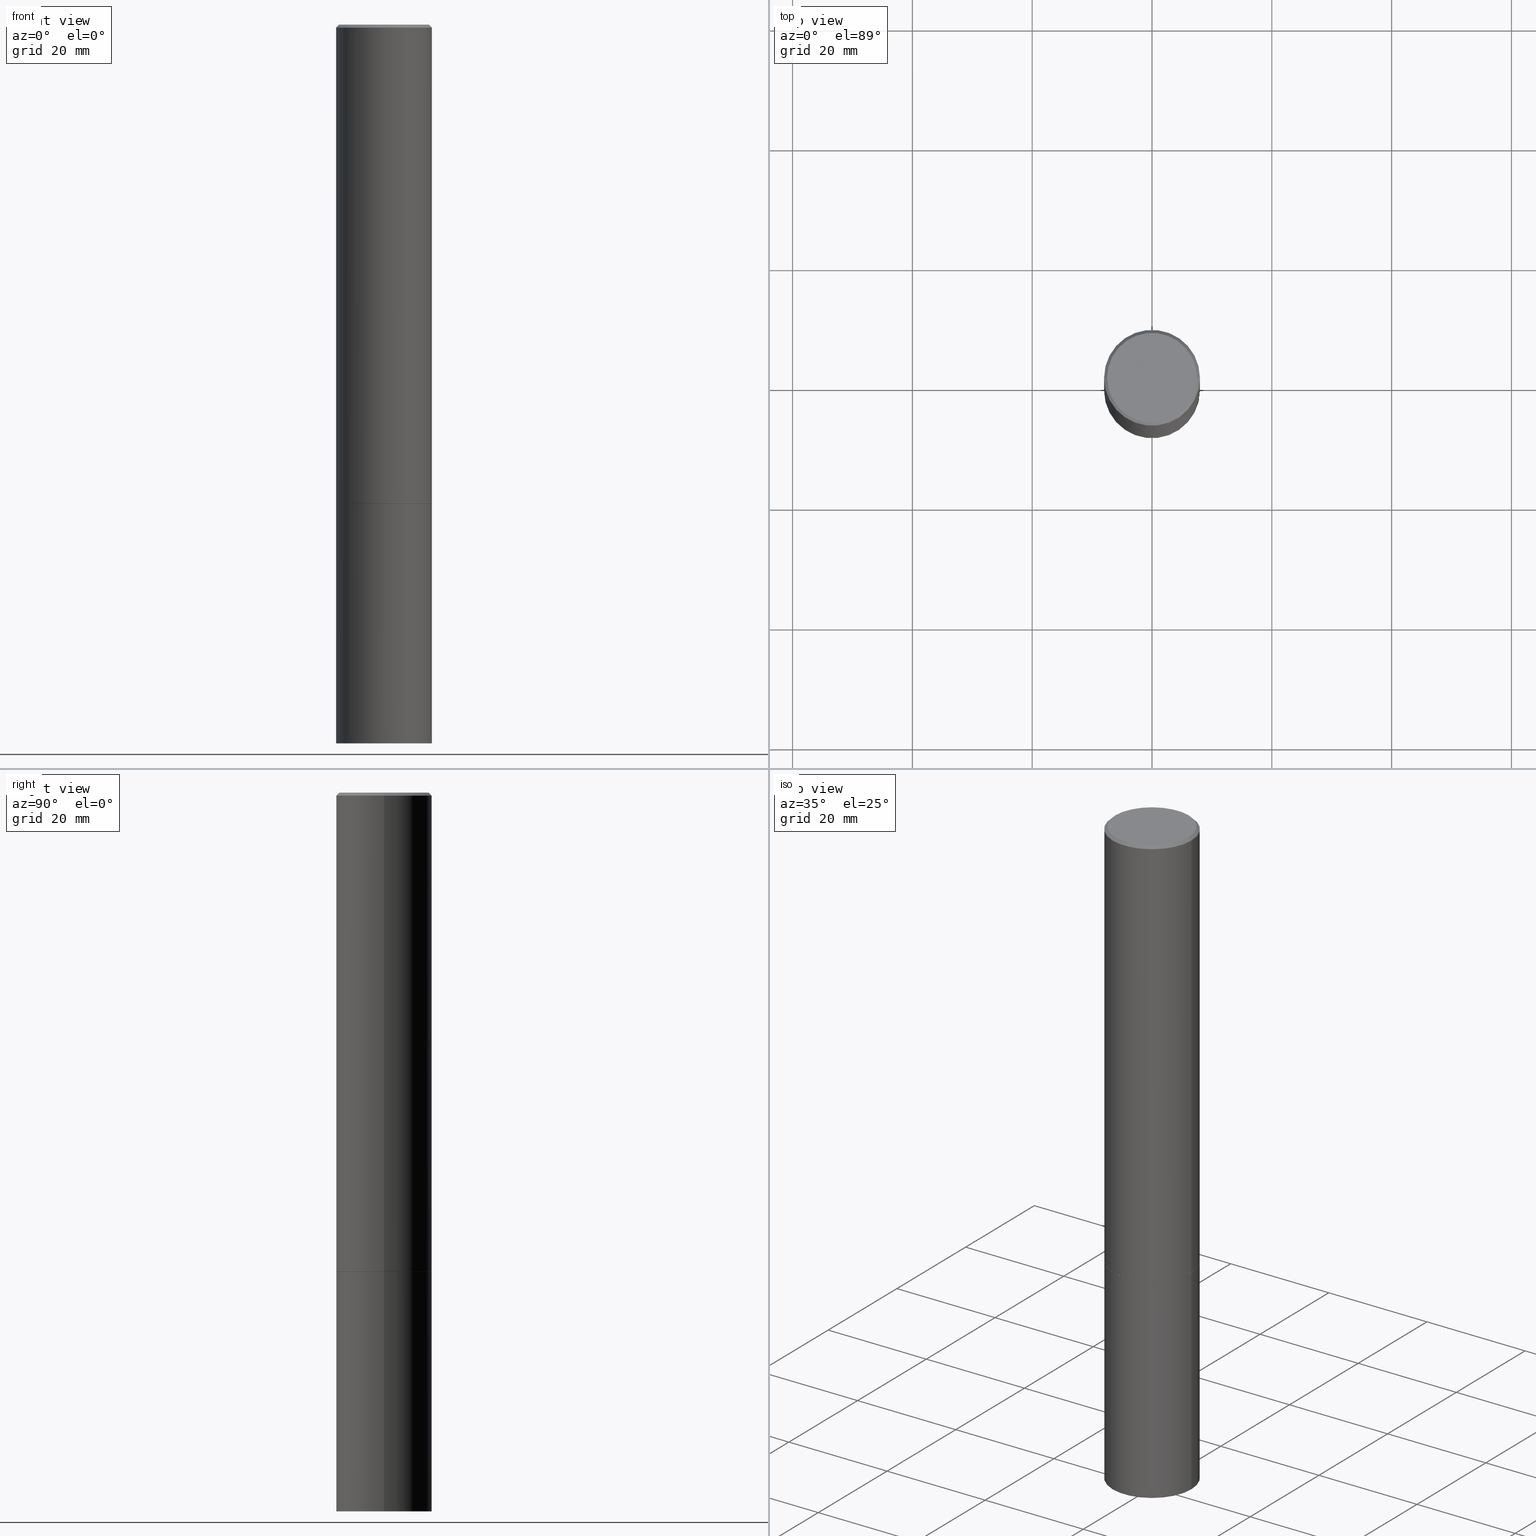
[diagram: canonical four-view strip — front | top / right | iso, engineering-drawing reading convention]
A machine part, canonical four-view strip (front | top / right | iso — engineering-drawing reading convention). The complete STEP part file that produces these views, byte-faithful:
ISO-10303-21;
HEADER;
FILE_DESCRIPTION (( 'STEP AP203' ),
    '1' );
FILE_NAME ('43957.STEP',
    '2024-02-28T06:00:45',
    ( '' ),
    ( '' ),
    'SwSTEP 2.0',
    'SolidWorks 2023',
    '' );
FILE_SCHEMA (( 'CONFIG_CONTROL_DESIGN' ));
ENDSEC;

DATA;
#1 = ORIENTED_EDGE ( 'NONE', *, *, #155, .T. ) ;
#2 = COORDINATED_UNIVERSAL_TIME_OFFSET ( 5, 0, .BEHIND. ) ;
#3 = LINE ( 'NONE', #166, #310 ) ;
#4 = DIRECTION ( 'NONE',  ( 1.000000000000000000, -6.982962677686263555E-15, 0.000000000000000000 ) ) ;
#5 = PRODUCT_RELATED_PRODUCT_CATEGORY ( 'detail', '', ( #163 ) ) ;
#6 = CC_DESIGN_APPROVAL ( #194, ( #365 ) ) ;
#7 = DIRECTION ( 'NONE',  ( -2.445468806185136597E-29, 3.491481338843145583E-15, 1.000000000000000000 ) ) ;
#8 = CARTESIAN_POINT ( 'NONE',  ( 0.3149500000000000077, -2.199284095337289871E-15, 1.535751875536930130E-29 ) ) ;
#9 = APPROVAL ( #189, 'UNSPECIFIED' ) ;
#10 = DIRECTION ( 'NONE',  ( -2.445468806185136597E-29, 3.491481338843145583E-15, 1.000000000000000000 ) ) ;
#11 = CLOSED_SHELL ( 'NONE', ( #115, #176, #329, #258, #33, #343, #17, #307 ) ) ;
#12 = DIMENSIONAL_EXPONENTS ( 1.000000000000000000, 0.000000000000000000, 0.000000000000000000, 0.000000000000000000, 0.000000000000000000, 0.000000000000000000, 0.000000000000000000 ) ;
#13 = ORIENTED_EDGE ( 'NONE', *, *, #243, .T. ) ;
#14 = ORIENTED_EDGE ( 'NONE', *, *, #363, .T. ) ;
#15 = ORIENTED_EDGE ( 'NONE', *, *, #266, .F. ) ;
#16 = ORIENTED_EDGE ( 'NONE', *, *, #20, .T. ) ;
#17 = ADVANCED_FACE ( 'NONE', ( #40 ), #355, .F. ) ;
#18 = ORIENTED_EDGE ( 'NONE', *, *, #277, .T. ) ;
#19 = DIRECTION ( 'NONE',  ( -0.7071067811865466846, 2.468850131082247989E-15, -0.7071067811865483499 ) ) ;
#20 = EDGE_CURVE ( 'NONE', #244, #212, #348, .T. ) ;
#21 = DIRECTION ( 'NONE',  ( -2.445468806185136597E-29, 3.491481338843145583E-15, 1.000000000000000000 ) ) ;
#22 = DATE_AND_TIME ( #361, #45 ) ;
#23 = DIRECTION ( 'NONE',  ( 1.000000000000000000, -6.982962677686263555E-15, 0.000000000000000000 ) ) ;
#24 = CIRCLE ( 'NONE', #123, 0.3139500000000000068 ) ;
#25 = APPROVAL_PERSON_ORGANIZATION ( #280, #9, #309 ) ;
#26 = PERSON_AND_ORGANIZATION_ROLE ( 'creator' ) ;
#27 = EDGE_LOOP ( 'NONE', ( #295, #15 ) ) ;
#28 = DIRECTION ( 'NONE',  ( 0.7071067811865466846, -7.319954787623252890E-15, -0.7071067811865483499 ) ) ;
#29 = EDGE_CURVE ( 'NONE', #103, #108, #186, .T. ) ;
#30 = DIRECTION ( 'NONE',  ( -2.445468806185136597E-29, 3.491481338843145583E-15, 1.000000000000000000 ) ) ;
#31 = CONICAL_SURFACE ( 'NONE', #184, 0.3149499999999996191, 0.7853981633974471688 ) ;
#32 = DIRECTION ( 'NONE',  ( 2.438088387897960049E-29, -3.491481338843145188E-15, -1.000000000000000000 ) ) ;
#33 = ADVANCED_FACE ( 'NONE', ( #145 ), #332, .T. ) ;
#34 = DIRECTION ( 'NONE',  ( 2.438088387897960049E-29, -3.491481338843145188E-15, -1.000000000000000000 ) ) ;
#35 = CARTESIAN_POINT ( 'NONE',  ( 7.702248551960704469E-29, -1.099676962482037073E-14, -3.149599999999999511 ) ) ;
#36 = APPROVAL_DATE_TIME ( #205, #194 ) ;
#37 = CIRCLE ( 'NONE', #67, 0.2949499999999996014 ) ;
#38 = LINE ( 'NONE', #350, #39 ) ;
#39 = VECTOR ( 'NONE', #202, 39.37007874015748143 ) ;
#40 = FACE_OUTER_BOUND ( 'NONE', #50, .T. ) ;
#41 = ADVANCED_FACE ( 'NONE', ( #114 ), #86, .F. ) ;
#42 =( NAMED_UNIT ( * ) SI_UNIT ( $, .STERADIAN. ) SOLID_ANGLE_UNIT ( ) );
#43 = ORIENTED_EDGE ( 'NONE', *, *, #155, .F. ) ;
#44 = ORIENTED_EDGE ( 'NONE', *, *, #200, .T. ) ;
#45 = LOCAL_TIME ( 1, 0, 45.00000000000000000, #335 ) ;
#46 = AXIS2_PLACEMENT_3D ( 'NONE', #154, #352, #283 ) ;
#47 = CARTESIAN_POINT ( 'NONE',  ( 0.000000000000000000, 0.000000000000000000, 0.000000000000000000 ) ) ;
#48 = APPROVAL ( #76, 'UNSPECIFIED' ) ;
#49 = ORIENTED_EDGE ( 'NONE', *, *, #96, .F. ) ;
#50 = EDGE_LOOP ( 'NONE', ( #43, #321 ) ) ;
#51 = APPROVAL_DATE_TIME ( #83, #48 ) ;
#52 = DESIGN_CONTEXT ( 'detailed design', #81, 'design' ) ;
#53 = PERSON_AND_ORGANIZATION_ROLE ( 'classification_officer' ) ;
#54 = CARTESIAN_POINT ( 'NONE',  ( -0.3149499999999996191, 2.129454468560423812E-15, -0.02000000000000006981 ) ) ;
#55 = DIRECTION ( 'NONE',  ( -2.445468806185136597E-29, 3.491481338843145583E-15, 1.000000000000000000 ) ) ;
#56 = DIRECTION ( 'NONE',  ( 1.000000000000000000, -6.982962677686265922E-15, 0.000000000000000000 ) ) ;
#57 = CLOSED_SHELL ( 'NONE', ( #236, #248, #41, #218 ) ) ;
#58 = AXIS2_PLACEMENT_3D ( 'NONE', #249, #141, #302 ) ;
#59 = PERSON_AND_ORGANIZATION ( #305, #333 ) ;
#60 = AXIS2_PLACEMENT_3D ( 'NONE', #170, #216, #4 ) ;
#61 = DIRECTION ( 'NONE',  ( 1.000000000000000000, -6.982962677686266711E-15, 0.000000000000000000 ) ) ;
#62 = CC_DESIGN_PERSON_AND_ORGANIZATION_ASSIGNMENT ( #219, #275, ( #80 ) ) ;
#63 = DIRECTION ( 'NONE',  ( 2.445468806185136597E-29, -3.491481338843145583E-15, -1.000000000000000000 ) ) ;
#64 = CARTESIAN_POINT ( 'NONE',  ( 2.199284095337404650E-15, 0.3149499999999834654, -4.724400000000001043 ) ) ;
#65 = UNCERTAINTY_MEASURE_WITH_UNIT (LENGTH_MEASURE( 1.000000000000000082E-05 ), #323, 'distance_accuracy_value', 'NONE');
#66 = EDGE_CURVE ( 'NONE', #238, #271, #183, .T. ) ;
#67 = AXIS2_PLACEMENT_3D ( 'NONE', #336, #196, #89 ) ;
#68 = DIRECTION ( 'NONE',  ( -0.7071067811866199593, 7.493145998870616062E-15, 0.7071067811864750752 ) ) ;
#69 = LINE ( 'NONE', #8, #127 ) ;
#70 = SHAPE_DEFINITION_REPRESENTATION ( #133, #92 ) ;
#71 = LINE ( 'NONE', #148, #303 ) ;
#72 = EDGE_CURVE ( 'NONE', #108, #238, #3, .T. ) ;
#73 = EDGE_LOOP ( 'NONE', ( #78, #132, #188, #135 ) ) ;
#74 = DIRECTION ( 'NONE',  ( 1.000000000000000000, 0.000000000000000000, 0.000000000000000000 ) ) ;
#75 = EDGE_LOOP ( 'NONE', ( #299, #18, #105, #284 ) ) ;
#76 = APPROVAL_STATUS ( 'not_yet_approved' ) ;
#77 = ORIENTED_EDGE ( 'NONE', *, *, #296, .T. ) ;
#78 = ORIENTED_EDGE ( 'NONE', *, *, #200, .F. ) ;
#79 = CIRCLE ( 'NONE', #98, 0.3149500000000000077 ) ;
#80 = PRODUCT_DEFINITION_FORMATION_WITH_SPECIFIED_SOURCE ( 'ANY', '', #163, .NOT_KNOWN. ) ;
#81 = APPLICATION_CONTEXT ( 'configuration controlled 3d designs of mechanical parts and assemblies' ) ;
#82 = ORIENTED_EDGE ( 'NONE', *, *, #172, .F. ) ;
#83 = DATE_AND_TIME ( #331, #220 ) ;
#84 = CARTESIAN_POINT ( 'NONE',  ( 0.3149499999999997857, -2.199284095337288293E-15, 1.535751875536929009E-29 ) ) ;
#85 = CALENDAR_DATE ( 2024, 28, 2 ) ;
#86 = PLANE ( 'NONE',  #345 ) ;
#87 = CONICAL_SURFACE ( 'NONE', #147, 0.3149499999999996191, 0.7853981633974471688 ) ;
#88 = CARTESIAN_POINT ( 'NONE',  ( -0.3149500000000000077, -1.150810768474902901E-14, -4.724400000000000155 ) ) ;
#89 = DIRECTION ( 'NONE',  ( 1.000000000000000000, -6.982962677686265922E-15, 4.876053491004741073E-29 ) ) ;
#90 = EDGE_CURVE ( 'NONE', #129, #300, #353, .T. ) ;
#91 = DATE_AND_TIME ( #85, #293 ) ;
#92 = ADVANCED_BREP_SHAPE_REPRESENTATION ( '43957', ( #360, #239, #174 ), #320 ) ;
#93 = DIRECTION ( 'NONE',  ( -1.000000000000000000, 6.982962677686265922E-15, -4.876176775795935793E-29 ) ) ;
#94 = VECTOR ( 'NONE', #19, 39.37007874015748143 ) ;
#95 = FACE_OUTER_BOUND ( 'NONE', #182, .T. ) ;
#96 = EDGE_CURVE ( 'NONE', #271, #238, #198, .T. ) ;
#97 = CYLINDRICAL_SURFACE ( 'NONE', #240, 0.3149500000000000077 ) ;
#98 = AXIS2_PLACEMENT_3D ( 'NONE', #197, #110, #165 ) ;
#99 = DIRECTION ( 'NONE',  ( -1.000000000000000000, 6.982962677686265922E-15, 0.000000000000000000 ) ) ;
#100 = DIRECTION ( 'NONE',  ( -1.000000000000000000, 6.982962677686265922E-15, -4.876176775795935793E-29 ) ) ;
#101 = CC_DESIGN_PERSON_AND_ORGANIZATION_ASSIGNMENT ( #358, #26, ( #317 ) ) ;
#102 = EDGE_LOOP ( 'NONE', ( #225, #44 ) ) ;
#103 = VERTEX_POINT ( 'NONE', #366 ) ;
#104 = ORIENTED_EDGE ( 'NONE', *, *, #266, .T. ) ;
#105 = ORIENTED_EDGE ( 'NONE', *, *, #66, .F. ) ;
#106 = CIRCLE ( 'NONE', #282, 0.3149500000000000077 ) ;
#107 = COORDINATED_UNIVERSAL_TIME_OFFSET ( 5, 0, .BEHIND. ) ;
#108 = VERTEX_POINT ( 'NONE', #168 ) ;
#109 = EDGE_CURVE ( 'NONE', #300, #238, #255, .T. ) ;
#110 = DIRECTION ( 'NONE',  ( -2.445468806185136597E-29, 3.491481338843145583E-15, 1.000000000000000000 ) ) ;
#111 = CARTESIAN_POINT ( 'NONE',  ( 0.000000000000000000, 0.000000000000000000, 0.000000000000000000 ) ) ;
#112 = CC_DESIGN_APPROVAL ( #48, ( #317 ) ) ;
#113 = APPROVAL_ROLE ( '' ) ;
#114 = FACE_OUTER_BOUND ( 'NONE', #273, .T. ) ;
#115 = ADVANCED_FACE ( 'NONE', ( #167 ), #298, .T. ) ;
#116 = APPROVAL_DATE_TIME ( #337, #9 ) ;
#117 = DIRECTION ( 'NONE',  ( 1.000000000000000000, -6.982962677686269866E-15, 0.000000000000000000 ) ) ;
#118 = LINE ( 'NONE', #287, #347 ) ;
#119 = PLANE ( 'NONE',  #257 ) ;
#120 = CARTESIAN_POINT ( 'NONE',  ( 2.059624841783561302E-15, 0.2949499999999996014, -1.025543908401683972E-15 ) ) ;
#121 = CC_DESIGN_DATE_AND_TIME_ASSIGNMENT ( #22, #301, ( #365 ) ) ;
#122 = DIRECTION ( 'NONE',  ( 1.000000000000000000, -6.982962677686266711E-15, 4.876176775795936353E-29 ) ) ;
#123 = AXIS2_PLACEMENT_3D ( 'NONE', #276, #281, #61 ) ;
#124 = CARTESIAN_POINT ( 'NONE',  ( 0.3149499999999996191, -2.230543471175004294E-15, -0.02000000000000006981 ) ) ;
#125 = PERSON_AND_ORGANIZATION_ROLE ( 'design_owner' ) ;
#126 = ORIENTED_EDGE ( 'NONE', *, *, #227, .F. ) ;
#127 = VECTOR ( 'NONE', #341, 39.37007874015748143 ) ;
#128 = CC_DESIGN_SECURITY_CLASSIFICATION ( #365, ( #80 ) ) ;
#129 = VERTEX_POINT ( 'NONE', #247 ) ;
#130 =( LENGTH_UNIT ( ) NAMED_UNIT ( * ) SI_UNIT ( $, .METRE. ) );
#131 = ORIENTED_EDGE ( 'NONE', *, *, #72, .F. ) ;
#132 = ORIENTED_EDGE ( 'NONE', *, *, #72, .T. ) ;
#133 = PRODUCT_DEFINITION_SHAPE ( 'NONE', 'NONE',  #317 ) ;
#134 = CIRCLE ( 'NONE', #340, 0.3139500000000000068 ) ;
#135 = ORIENTED_EDGE ( 'NONE', *, *, #162, .F. ) ;
#136 = PERSON_AND_ORGANIZATION ( #305, #333 ) ;
#137 = DIRECTION ( 'NONE',  ( -2.445468806185136597E-29, 3.491481338843145583E-15, 1.000000000000000000 ) ) ;
#138 = APPROVAL_STATUS ( 'not_yet_approved' ) ;
#139 = FACE_OUTER_BOUND ( 'NONE', #75, .T. ) ;
#140 = SECURITY_CLASSIFICATION_LEVEL ( 'unclassified' ) ;
#141 = DIRECTION ( 'NONE',  ( -2.445468806185136597E-29, 3.491481338843145583E-15, 1.000000000000000000 ) ) ;
#142 = CC_DESIGN_PERSON_AND_ORGANIZATION_ASSIGNMENT ( #191, #53, ( #365 ) ) ;
#143 = DIRECTION ( 'NONE',  ( 1.000000000000000000, -6.982962677686265922E-15, 4.876053491004741073E-29 ) ) ;
#144 = EDGE_LOOP ( 'NONE', ( #16, #159, #319, #157 ) ) ;
#145 = FACE_OUTER_BOUND ( 'NONE', #241, .T. ) ;
#146 = CARTESIAN_POINT ( 'NONE',  ( 0.3149500000000000077, -1.319605372015765902E-14, -3.149599999999999511 ) ) ;
#147 = AXIS2_PLACEMENT_3D ( 'NONE', #344, #315, #99 ) ;
#148 = CARTESIAN_POINT ( 'NONE',  ( 0.3139500000000000068, -1.318907075747997459E-14, -3.149599999999999511 ) ) ;
#149 = CARTESIAN_POINT ( 'NONE',  ( 1.155337282794105951E-28, -1.649515443723055925E-14, -4.724400000000000155 ) ) ;
#150 = EDGE_CURVE ( 'NONE', #300, #129, #79, .T. ) ;
#151 = PLANE ( 'NONE',  #169 ) ;
#152 = AXIS2_PLACEMENT_3D ( 'NONE', #226, #252, #143 ) ;
#153 = APPLICATION_PROTOCOL_DEFINITION ( 'international standard', 'config_control_design', 1994, #224 ) ;
#154 = CARTESIAN_POINT ( 'NONE',  ( 7.702248551960704469E-29, -1.099676962482037073E-14, -3.149599999999999511 ) ) ;
#155 = EDGE_CURVE ( 'NONE', #242, #161, #24, .T. ) ;
#156 = APPROVAL_ROLE ( '' ) ;
#157 = ORIENTED_EDGE ( 'NONE', *, *, #243, .F. ) ;
#158 = AXIS2_PLACEMENT_3D ( 'NONE', #111, #338, #221 ) ;
#159 = ORIENTED_EDGE ( 'NONE', *, *, #254, .T. ) ;
#160 = ORIENTED_EDGE ( 'NONE', *, *, #322, .T. ) ;
#161 = VERTEX_POINT ( 'NONE', #359 ) ;
#162 = EDGE_CURVE ( 'NONE', #103, #271, #304, .T. ) ;
#163 = PRODUCT ( '43957', '43957', '', ( #208 ) ) ;
#164 = CIRCLE ( 'NONE', #233, 0.3149500000000000077 ) ;
#165 = DIRECTION ( 'NONE',  ( 1.000000000000000000, -6.982962677686269866E-15, 0.000000000000000000 ) ) ;
#166 = CARTESIAN_POINT ( 'NONE',  ( 0.3149499999999996191, -2.230543471175004294E-15, -0.02000000000000006981 ) ) ;
#167 = FACE_OUTER_BOUND ( 'NONE', #213, .T. ) ;
#168 = CARTESIAN_POINT ( 'NONE',  ( 0.2949499999999996014, -2.127023677808857314E-15, 8.537024980215462707E-18 ) ) ;
#169 = AXIS2_PLACEMENT_3D ( 'NONE', #120, #32, #100 ) ;
#170 = CARTESIAN_POINT ( 'NONE',  ( 1.155337282794105951E-28, -1.649515443723055925E-14, -4.724400000000000155 ) ) ;
#171 = DIRECTION ( 'NONE',  ( -1.000000000000000000, 6.982962677686265922E-15, 0.000000000000000000 ) ) ;
#172 = EDGE_CURVE ( 'NONE', #211, #269, #164, .T. ) ;
#173 = CARTESIAN_POINT ( 'NONE',  ( 0.3149500000000000077, -1.319256223881881917E-14, -3.148600000000000065 ) ) ;
#174 = AXIS2_PLACEMENT_3D ( 'NONE', #47, #272, #74 ) ;
#175 = FACE_OUTER_BOUND ( 'NONE', #180, .T. ) ;
#176 = ADVANCED_FACE ( 'NONE', ( #139 ), #362, .T. ) ;
#177 = DIRECTION ( 'NONE',  ( -2.445468806185136597E-29, 3.491481338843145583E-15, 1.000000000000000000 ) ) ;
#178 = CARTESIAN_POINT ( 'NONE',  ( 0.000000000000000000, 0.000000000000000000, 0.000000000000000000 ) ) ;
#179 = PERSON_AND_ORGANIZATION ( #305, #333 ) ;
#180 = EDGE_LOOP ( 'NONE', ( #126, #14, #160, #245 ) ) ;
#181 = EDGE_LOOP ( 'NONE', ( #356, #104, #13, #82 ) ) ;
#182 = EDGE_LOOP ( 'NONE', ( #131, #294, #267, #354 ) ) ;
#183 = CIRCLE ( 'NONE', #203, 0.3149499999999996191 ) ;
#184 = AXIS2_PLACEMENT_3D ( 'NONE', #232, #63, #171 ) ;
#185 = ORIENTED_EDGE ( 'NONE', *, *, #277, .F. ) ;
#186 = CIRCLE ( 'NONE', #152, 0.2949499999999996014 ) ;
#187 =( NAMED_UNIT ( * ) PLANE_ANGLE_UNIT ( ) SI_UNIT ( $, .RADIAN. ) );
#188 = ORIENTED_EDGE ( 'NONE', *, *, #66, .T. ) ;
#189 = APPROVAL_STATUS ( 'not_yet_approved' ) ;
#190 = DIRECTION ( 'NONE',  ( -2.445468806185136877E-29, 3.491481338843145188E-15, 1.000000000000000000 ) ) ;
#191 = PERSON_AND_ORGANIZATION ( #305, #333 ) ;
#192 = VECTOR ( 'NONE', #190, 39.37007874015748143 ) ;
#193 = DIRECTION ( 'NONE',  ( 1.000000000000000000, -6.982962677686266711E-15, 4.876176775795935793E-29 ) ) ;
#194 = APPROVAL ( #138, 'UNSPECIFIED' ) ;
#195 = CARTESIAN_POINT ( 'NONE',  ( 4.890937612370289799E-31, -6.982962677686315028E-17, -0.02000000000000006981 ) ) ;
#196 = DIRECTION ( 'NONE',  ( -2.445468806185136597E-29, 3.491481338843145583E-15, 1.000000000000000000 ) ) ;
#197 = CARTESIAN_POINT ( 'NONE',  ( 7.699803083154521108E-29, -1.099327814348152772E-14, -3.148600000000000065 ) ) ;
#198 = CIRCLE ( 'NONE', #214, 0.3149499999999996191 ) ;
#199 = FACE_OUTER_BOUND ( 'NONE', #144, .T. ) ;
#200 = EDGE_CURVE ( 'NONE', #108, #103, #37, .T. ) ;
#201 = LINE ( 'NONE', #228, #251 ) ;
#202 = DIRECTION ( 'NONE',  ( -2.445468806185136877E-29, 3.491481338843145188E-15, 1.000000000000000000 ) ) ;
#203 = AXIS2_PLACEMENT_3D ( 'NONE', #285, #253, #56 ) ;
#204 = APPROVAL_PERSON_ORGANIZATION ( #136, #194, #113 ) ;
#205 = DATE_AND_TIME ( #229, #264 ) ;
#206 = DIRECTION ( 'NONE',  ( 1.000000000000000000, -6.982962677686263555E-15, 0.000000000000000000 ) ) ;
#207 = CARTESIAN_POINT ( 'NONE',  ( 0.000000000000000000, 0.000000000000000000, 0.000000000000000000 ) ) ;
#208 = MECHANICAL_CONTEXT ( 'NONE', #224, 'mechanical' ) ;
#209 = AXIS2_PLACEMENT_3D ( 'NONE', #223, #137, #117 ) ;
#210 = CC_DESIGN_DATE_AND_TIME_ASSIGNMENT ( #91, #246, ( #317 ) ) ;
#211 = VERTEX_POINT ( 'NONE', #308 ) ;
#212 = VERTEX_POINT ( 'NONE', #88 ) ;
#213 = EDGE_LOOP ( 'NONE', ( #1, #297, #215, #274 ) ) ;
#214 = AXIS2_PLACEMENT_3D ( 'NONE', #195, #55, #311 ) ;
#215 = ORIENTED_EDGE ( 'NONE', *, *, #150, .F. ) ;
#216 = DIRECTION ( 'NONE',  ( -2.445468806185136597E-29, 3.491481338843145583E-15, 1.000000000000000000 ) ) ;
#217 = CARTESIAN_POINT ( 'NONE',  ( 2.199284095337366390E-15, 0.3149499999999890165, -3.149600000000000843 ) ) ;
#218 = ADVANCED_FACE ( 'NONE', ( #286 ), #265, .T. ) ;
#219 = PERSON_AND_ORGANIZATION ( #305, #333 ) ;
#220 = LOCAL_TIME ( 1, 0, 45.00000000000000000, #268 ) ;
#221 = DIRECTION ( 'NONE',  ( 1.000000000000000000, -6.982962677686266711E-15, 4.876176775795935793E-29 ) ) ;
#222 = COORDINATED_UNIVERSAL_TIME_OFFSET ( 5, 0, .BEHIND. ) ;
#223 = CARTESIAN_POINT ( 'NONE',  ( 7.699803083154521108E-29, -1.099327814348152772E-14, -3.148600000000000065 ) ) ;
#224 = APPLICATION_CONTEXT ( 'configuration controlled 3d designs of mechanical parts and assemblies' ) ;
#225 = ORIENTED_EDGE ( 'NONE', *, *, #29, .T. ) ;
#226 = CARTESIAN_POINT ( 'NONE',  ( -2.087702828670439639E-46, 2.980686340760894400E-32, 8.537024980200822558E-18 ) ) ;
#227 = EDGE_CURVE ( 'NONE', #161, #129, #201, .T. ) ;
#228 = CARTESIAN_POINT ( 'NONE',  ( -0.3139500000000000068, -8.766020705901534966E-15, -3.149599999999999511 ) ) ;
#229 = CALENDAR_DATE ( 2024, 28, 2 ) ;
#230 = DIRECTION ( 'NONE',  ( 1.000000000000000000, -6.982962677686263555E-15, 0.000000000000000000 ) ) ;
#231 = DIRECTION ( 'NONE',  ( 0.7071067811866199593, -2.468850131083015945E-15, 0.7071067811864750752 ) ) ;
#232 = CARTESIAN_POINT ( 'NONE',  ( 4.890937612370289799E-31, -6.982962677686315028E-17, -0.02000000000000006981 ) ) ;
#233 = AXIS2_PLACEMENT_3D ( 'NONE', #279, #21, #23 ) ;
#234 = CARTESIAN_POINT ( 'NONE',  ( 0.3149500000000000077, -1.869443853256784755E-14, -4.724400000000000155 ) ) ;
#235 = LENGTH_MEASURE_WITH_UNIT ( LENGTH_MEASURE( 0.02539999999999999897 ), #130 );
#236 = ADVANCED_FACE ( 'NONE', ( #199 ), #97, .T. ) ;
#237 = APPLICATION_PROTOCOL_DEFINITION ( 'international standard', 'config_control_design', 1994, #81 ) ;
#238 = VERTEX_POINT ( 'NONE', #124 ) ;
#239 = MANIFOLD_SOLID_BREP ( 'Body-Move/Copy2[2]', #11 ) ;
#240 = AXIS2_PLACEMENT_3D ( 'NONE', #207, #30, #313 ) ;
#241 = EDGE_LOOP ( 'NONE', ( #185, #324, #325, #49 ) ) ;
#242 = VERTEX_POINT ( 'NONE', #289 ) ;
#243 = EDGE_CURVE ( 'NONE', #244, #269, #69, .T. ) ;
#244 = VERTEX_POINT ( 'NONE', #234 ) ;
#245 = ORIENTED_EDGE ( 'NONE', *, *, #90, .F. ) ;
#246 = DATE_TIME_ROLE ( 'creation_date' ) ;
#247 = CARTESIAN_POINT ( 'NONE',  ( -0.3149500000000000077, -3.293699538852755977E-15, -3.148600000000000065 ) ) ;
#248 = ADVANCED_FACE ( 'NONE', ( #318 ), #119, .T. ) ;
#249 = CARTESIAN_POINT ( 'NONE',  ( 7.702248551960704469E-29, -1.099676962482037073E-14, -3.149599999999999511 ) ) ;
#250 = CALENDAR_DATE ( 2024, 28, 2 ) ;
#251 = VECTOR ( 'NONE', #68, 39.37007874015748143 ) ;
#252 = DIRECTION ( 'NONE',  ( -2.445468806185136597E-29, 3.491481338843145583E-15, 1.000000000000000000 ) ) ;
#253 = DIRECTION ( 'NONE',  ( -2.445468806185136597E-29, 3.491481338843145583E-15, 1.000000000000000000 ) ) ;
#254 = EDGE_CURVE ( 'NONE', #212, #211, #118, .T. ) ;
#255 = LINE ( 'NONE', #84, #192 ) ;
#256 = CARTESIAN_POINT ( 'NONE',  ( -0.3149499999999996191, 2.129454468560423812E-15, -0.02000000000000006981 ) ) ;
#257 = AXIS2_PLACEMENT_3D ( 'NONE', #64, #34, #259 ) ;
#258 = ADVANCED_FACE ( 'NONE', ( #95 ), #31, .T. ) ;
#259 = DIRECTION ( 'NONE',  ( -1.000000000000000000, 6.982962677686265922E-15, -4.876176775795935793E-29 ) ) ;
#260 = DIRECTION ( 'NONE',  ( -2.445468806185136597E-29, 3.491481338843145583E-15, 1.000000000000000000 ) ) ;
#261 = CARTESIAN_POINT ( 'NONE',  ( 7.702248551960704469E-29, -1.099676962482037073E-14, -3.149599999999999511 ) ) ;
#262 = AXIS2_PLACEMENT_3D ( 'NONE', #330, #306, #193 ) ;
#263 = AXIS2_PLACEMENT_3D ( 'NONE', #149, #291, #206 ) ;
#264 = LOCAL_TIME ( 1, 0, 45.00000000000000000, #222 ) ;
#265 = CYLINDRICAL_SURFACE ( 'NONE', #326, 0.3149500000000000077 ) ;
#266 = EDGE_CURVE ( 'NONE', #212, #244, #364, .T. ) ;
#267 = ORIENTED_EDGE ( 'NONE', *, *, #162, .T. ) ;
#268 = COORDINATED_UNIVERSAL_TIME_OFFSET ( 5, 0, .BEHIND. ) ;
#269 = VERTEX_POINT ( 'NONE', #146 ) ;
#270 = APPROVAL_PERSON_ORGANIZATION ( #351, #48, #156 ) ;
#271 = VERTEX_POINT ( 'NONE', #256 ) ;
#272 = DIRECTION ( 'NONE',  ( 0.000000000000000000, 0.000000000000000000, 1.000000000000000000 ) ) ;
#273 = EDGE_LOOP ( 'NONE', ( #77, #328 ) ) ;
#274 = ORIENTED_EDGE ( 'NONE', *, *, #322, .F. ) ;
#275 = PERSON_AND_ORGANIZATION_ROLE ( 'design_supplier' ) ;
#276 = CARTESIAN_POINT ( 'NONE',  ( 7.702248551960704469E-29, -1.099676962482037073E-14, -3.149599999999999511 ) ) ;
#277 = EDGE_CURVE ( 'NONE', #129, #271, #38, .T. ) ;
#278 = PERSON_AND_ORGANIZATION_ROLE ( 'creator' ) ;
#279 = CARTESIAN_POINT ( 'NONE',  ( 7.702248551960704469E-29, -1.099676962482037073E-14, -3.149599999999999511 ) ) ;
#280 = PERSON_AND_ORGANIZATION ( #305, #333 ) ;
#281 = DIRECTION ( 'NONE',  ( -2.445468806185136597E-29, 3.491481338843145583E-15, 1.000000000000000000 ) ) ;
#282 = AXIS2_PLACEMENT_3D ( 'NONE', #35, #7, #230 ) ;
#283 = DIRECTION ( 'NONE',  ( 1.000000000000000000, -6.982962677686265922E-15, 4.876176775795935793E-29 ) ) ;
#284 = ORIENTED_EDGE ( 'NONE', *, *, #109, .F. ) ;
#285 = CARTESIAN_POINT ( 'NONE',  ( 4.890937612370289799E-31, -6.982962677686315028E-17, -0.02000000000000006981 ) ) ;
#286 = FACE_OUTER_BOUND ( 'NONE', #181, .T. ) ;
#287 = CARTESIAN_POINT ( 'NONE',  ( -0.3149500000000000077, 2.237854346276435590E-15, -1.549218606675782676E-29 ) ) ;
#288 = CONICAL_SURFACE ( 'NONE', #292, 0.3139500000000000068, 0.7853981633975507526 ) ;
#289 = CARTESIAN_POINT ( 'NONE',  ( 0.3139500000000000068, -1.318907075747997459E-14, -3.149599999999999511 ) ) ;
#290 = DIRECTION ( 'NONE',  ( 1.000000000000000000, -6.982962677686266711E-15, 0.000000000000000000 ) ) ;
#291 = DIRECTION ( 'NONE',  ( -2.445468806185136597E-29, 3.491481338843145583E-15, 1.000000000000000000 ) ) ;
#292 = AXIS2_PLACEMENT_3D ( 'NONE', #316, #177, #290 ) ;
#293 = LOCAL_TIME ( 1, 0, 45.00000000000000000, #2 ) ;
#294 = ORIENTED_EDGE ( 'NONE', *, *, #29, .F. ) ;
#295 = ORIENTED_EDGE ( 'NONE', *, *, #20, .F. ) ;
#296 = EDGE_CURVE ( 'NONE', #269, #211, #106, .T. ) ;
#297 = ORIENTED_EDGE ( 'NONE', *, *, #227, .T. ) ;
#298 = CONICAL_SURFACE ( 'NONE', #58, 0.3139500000000000068, 0.7853981633975507526 ) ;
#299 = ORIENTED_EDGE ( 'NONE', *, *, #150, .T. ) ;
#300 = VERTEX_POINT ( 'NONE', #173 ) ;
#301 = DATE_TIME_ROLE ( 'classification_date' ) ;
#302 = DIRECTION ( 'NONE',  ( 1.000000000000000000, -6.982962677686266711E-15, 0.000000000000000000 ) ) ;
#303 = VECTOR ( 'NONE', #231, 39.37007874015748143 ) ;
#304 = LINE ( 'NONE', #54, #94 ) ;
#305 = PERSON ( 'UNSPECIFIED', 'UNSPECIFIED', 'UNSPECIFIED', ('UNSPECIFIED'), ('UNSPECIFIED'), ('UNSPECIFIED') ) ;
#306 = DIRECTION ( 'NONE',  ( -2.445468806185136597E-29, 3.491481338843145583E-15, 1.000000000000000000 ) ) ;
#307 = ADVANCED_FACE ( 'NONE', ( #342 ), #151, .F. ) ;
#308 = CARTESIAN_POINT ( 'NONE',  ( -0.3149500000000000077, -1.150810768474902901E-14, -3.149599999999999511 ) ) ;
#309 = APPROVAL_ROLE ( '' ) ;
#310 = VECTOR ( 'NONE', #28, 39.37007874015748143 ) ;
#311 = DIRECTION ( 'NONE',  ( 1.000000000000000000, -6.982962677686265922E-15, 0.000000000000000000 ) ) ;
#312 = DIRECTION ( 'NONE',  ( -2.445468806185136877E-29, 3.491481338843145188E-15, 1.000000000000000000 ) ) ;
#313 = DIRECTION ( 'NONE',  ( 1.000000000000000000, -6.982962677686266711E-15, 4.876176775795936353E-29 ) ) ;
#314 = CC_DESIGN_PERSON_AND_ORGANIZATION_ASSIGNMENT ( #179, #125, ( #163 ) ) ;
#315 = DIRECTION ( 'NONE',  ( 2.445468806185136597E-29, -3.491481338843145583E-15, -1.000000000000000000 ) ) ;
#316 = CARTESIAN_POINT ( 'NONE',  ( 7.702248551960704469E-29, -1.099676962482037073E-14, -3.149599999999999511 ) ) ;
#317 = PRODUCT_DEFINITION ( 'UNKNOWN', '', #80, #52 ) ;
#318 = FACE_OUTER_BOUND ( 'NONE', #27, .T. ) ;
#319 = ORIENTED_EDGE ( 'NONE', *, *, #296, .F. ) ;
#320 =( GEOMETRIC_REPRESENTATION_CONTEXT ( 3 ) GLOBAL_UNCERTAINTY_ASSIGNED_CONTEXT ( ( #65 ) ) GLOBAL_UNIT_ASSIGNED_CONTEXT ( ( #323, #187, #42 ) ) REPRESENTATION_CONTEXT ( 'NONE', 'WORKASPACE' ) );
#321 = ORIENTED_EDGE ( 'NONE', *, *, #363, .F. ) ;
#322 = EDGE_CURVE ( 'NONE', #242, #300, #71, .T. ) ;
#323 =( CONVERSION_BASED_UNIT ( 'INCH', #235 ) LENGTH_UNIT ( ) NAMED_UNIT ( #12 ) );
#324 = ORIENTED_EDGE ( 'NONE', *, *, #90, .T. ) ;
#325 = ORIENTED_EDGE ( 'NONE', *, *, #109, .T. ) ;
#326 = AXIS2_PLACEMENT_3D ( 'NONE', #178, #260, #122 ) ;
#327 = DIRECTION ( 'NONE',  ( 1.000000000000000000, -6.982962677686266711E-15, 0.000000000000000000 ) ) ;
#328 = ORIENTED_EDGE ( 'NONE', *, *, #172, .T. ) ;
#329 = ADVANCED_FACE ( 'NONE', ( #346 ), #87, .T. ) ;
#330 = CARTESIAN_POINT ( 'NONE',  ( 0.000000000000000000, 0.000000000000000000, 0.000000000000000000 ) ) ;
#331 = CALENDAR_DATE ( 2024, 28, 2 ) ;
#332 = CYLINDRICAL_SURFACE ( 'NONE', #262, 0.3149499999999997857 ) ;
#333 = ORGANIZATION ( 'UNSPECIFIED', 'UNSPECIFIED', '' ) ;
#334 = LOCAL_TIME ( 1, 0, 45.00000000000000000, #107 ) ;
#335 = COORDINATED_UNIVERSAL_TIME_OFFSET ( 5, 0, .BEHIND. ) ;
#336 = CARTESIAN_POINT ( 'NONE',  ( -2.087702828670439639E-46, 2.980686340760894400E-32, 8.537024980200822558E-18 ) ) ;
#337 = DATE_AND_TIME ( #250, #334 ) ;
#338 = DIRECTION ( 'NONE',  ( -2.445468806185136597E-29, 3.491481338843145583E-15, 1.000000000000000000 ) ) ;
#339 = DIRECTION ( 'NONE',  ( 2.438088387897960049E-29, -3.491481338843145188E-15, -1.000000000000000000 ) ) ;
#340 = AXIS2_PLACEMENT_3D ( 'NONE', #261, #10, #327 ) ;
#341 = DIRECTION ( 'NONE',  ( -2.445468806185136877E-29, 3.491481338843145188E-15, 1.000000000000000000 ) ) ;
#342 = FACE_OUTER_BOUND ( 'NONE', #102, .T. ) ;
#343 = ADVANCED_FACE ( 'NONE', ( #175 ), #288, .T. ) ;
#344 = CARTESIAN_POINT ( 'NONE',  ( 4.890937612370289799E-31, -6.982962677686315028E-17, -0.02000000000000006981 ) ) ;
#345 = AXIS2_PLACEMENT_3D ( 'NONE', #217, #339, #93 ) ;
#346 = FACE_OUTER_BOUND ( 'NONE', #73, .T. ) ;
#347 = VECTOR ( 'NONE', #312, 39.37007874015748143 ) ;
#348 = CIRCLE ( 'NONE', #60, 0.3149500000000000077 ) ;
#349 = CC_DESIGN_PERSON_AND_ORGANIZATION_ASSIGNMENT ( #59, #278, ( #80 ) ) ;
#350 = CARTESIAN_POINT ( 'NONE',  ( -0.3149499999999997857, 2.237854346276434013E-15, -1.549218606675781555E-29 ) ) ;
#351 = PERSON_AND_ORGANIZATION ( #305, #333 ) ;
#352 = DIRECTION ( 'NONE',  ( -2.438088387897960049E-29, 3.491481338843145188E-15, 1.000000000000000000 ) ) ;
#353 = CIRCLE ( 'NONE', #209, 0.3149500000000000077 ) ;
#354 = ORIENTED_EDGE ( 'NONE', *, *, #96, .T. ) ;
#355 = PLANE ( 'NONE',  #46 ) ;
#356 = ORIENTED_EDGE ( 'NONE', *, *, #254, .F. ) ;
#357 = CC_DESIGN_APPROVAL ( #9, ( #80 ) ) ;
#358 = PERSON_AND_ORGANIZATION ( #305, #333 ) ;
#359 = CARTESIAN_POINT ( 'NONE',  ( -0.3139500000000000068, -8.760722251553314142E-15, -3.149599999999999511 ) ) ;
#360 = MANIFOLD_SOLID_BREP ( 'Body-Move/Copy2[1]', #57 ) ;
#361 = CALENDAR_DATE ( 2024, 28, 2 ) ;
#362 = CYLINDRICAL_SURFACE ( 'NONE', #158, 0.3149499999999997857 ) ;
#363 = EDGE_CURVE ( 'NONE', #161, #242, #134, .T. ) ;
#364 = CIRCLE ( 'NONE', #263, 0.3149500000000000077 ) ;
#365 = SECURITY_CLASSIFICATION ( '', '', #140 ) ;
#366 = CARTESIAN_POINT ( 'NONE',  ( -0.2949499999999996014, 2.094539655171992557E-15, 8.537024980186296424E-18 ) ) ;
ENDSEC;
END-ISO-10303-21;
